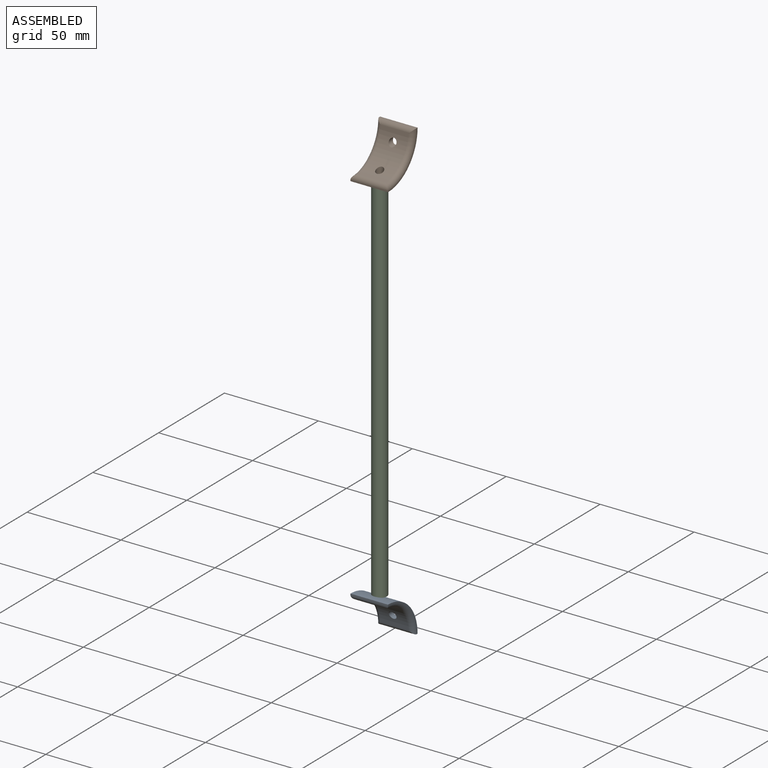
[diagram: assembled view]
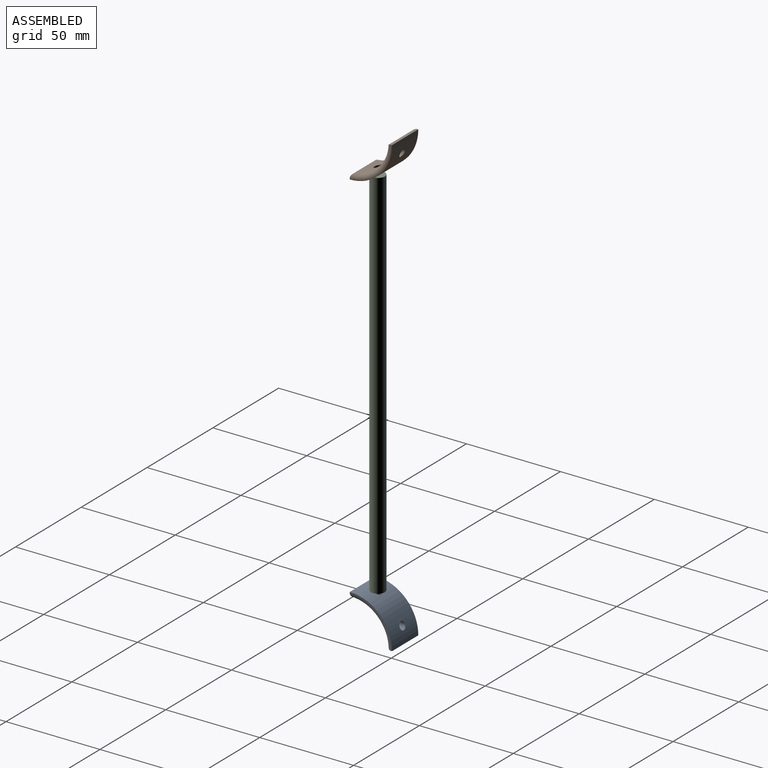
[diagram: assembled view, second angle]
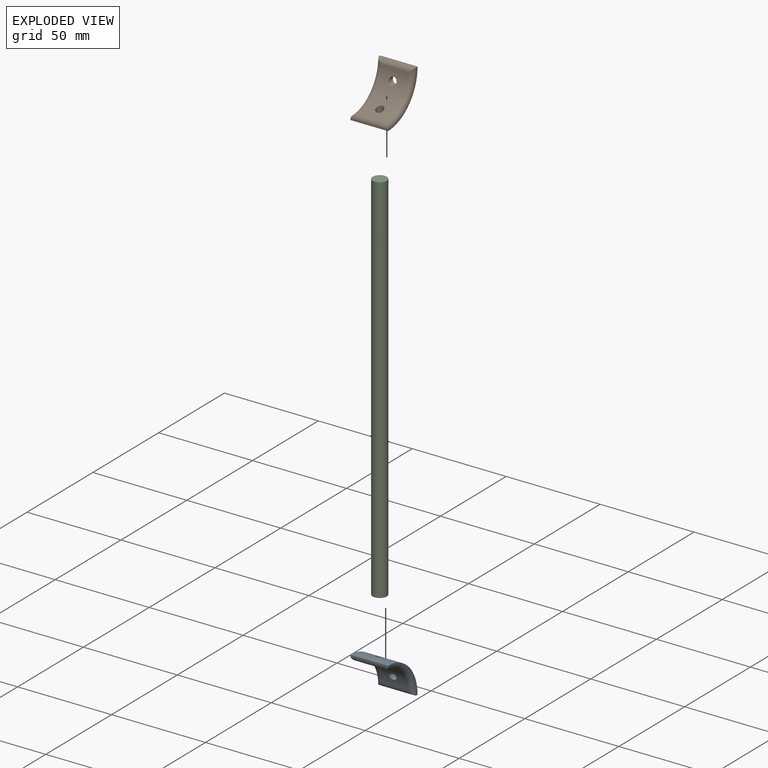
[diagram: exploded view]
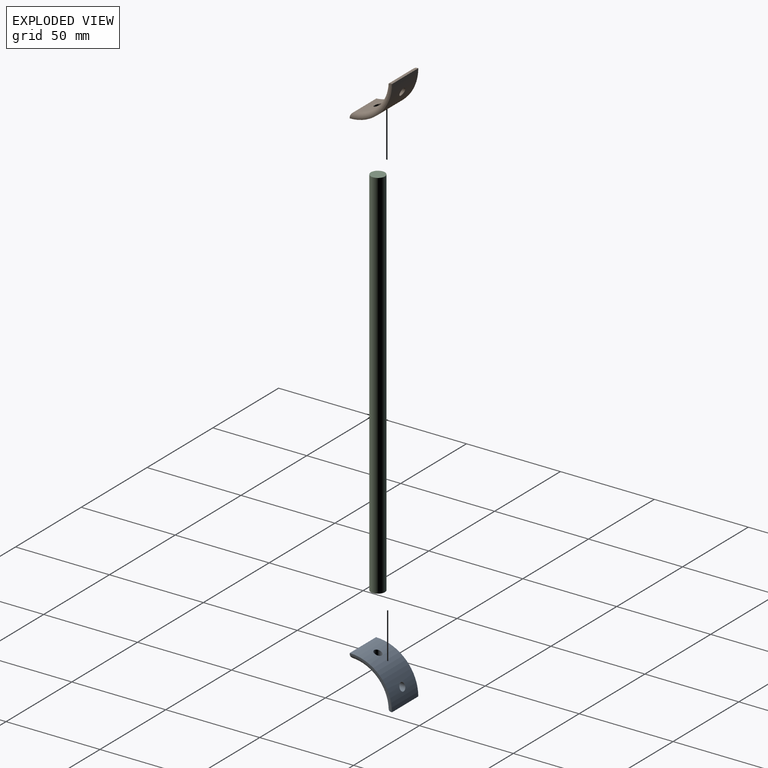
[diagram: exploded view, second angle]
ASSEMBLY  parts=3 mates=3
PART A: 12 faces, bbox 25.7x25.7x20 mm
  f0: cylinder r=22.5mm len=22.5mm, axis (0,0,-1), area 679.9mm2, adj f1,f3,f4,f5,f10,f11
  f1: plane 20x0.64mm, normal (0,-1,0), area 12.8mm2, adj f0,f4,f5,f7,f8,f9
  f2: cylinder r=19.5mm len=17.16mm, axis (0,0,-1), area 365.2mm2, adj f6,f7,f8,f9,f10,f11
  f3: plane 20x0.64mm, normal (1,0,0), area 12.8mm2, adj f0,f4,f5,f6,f7,f8
  f4: plane 22.5x22.5mm, normal (0,0,1), area 17.5mm2, adj f0,f1,f3,f7
  f5: plane 22.5x22.5mm, normal (0,0,-1), area 17.5mm2, adj f0,f1,f3,f8
  f6: cylinder r=2.5mm len=19.99mm, axis (0,0,-1), area 66.1mm2, adj f2,f3,f7,f8
  f7: torus R=22mm, axis (0,0,1), area 119.8mm2, adj f1,f2,f3,f4,f6,f9
  f8: torus R=22mm, axis (0,0,1), area 119.8mm2, adj f1,f2,f3,f5,f6,f9
  f9: cylinder r=2.5mm len=19.99mm, axis (0,0,-1), area 66.1mm2, adj f1,f2,f7,f8
  f10: cylinder r=2mm len=4.95mm, axis (0,-1,0), area 41mm2, adj f0,f2
  f11: cylinder r=2mm len=4.95mm, axis (1,0,0), area 41mm2, adj f0,f2
PART B: same geometry as A
PART C: 3 faces, bbox 7.5x7.5x200 mm
  f0: cylinder r=3.75mm len=200mm, axis (0,0,-1), area 4712.4mm2, adj f1,f2
  f1: plane 7.5x7.5mm, normal (0,0,1), area 44.2mm2, adj f0
  f2: plane 7.5x7.5mm, normal (0,0,-1), area 44.2mm2, adj f0
PLACE A rot(axis=(0,1,0),90deg) t=(-67.92,64.39,-96.5)mm
PLACE B rot(axis=(0,-1,0),90deg) t=(-47.92,64.39,146.94)mm
PLACE C t=(-57.92,72.39,-74.78)mm
MATE fastened C.f0 <-> A.f11  axis (0,0,-1) through (-57.92,72.39,-74.78)mm
MATE fastened C.f0 <-> B.f11  axis (0,0,1) through (-57.92,72.39,125.22)mm
MATE revolute C.f0 <-> C.f0  axis (0,0,-1) through (-57.92,72.39,25.22)mm
